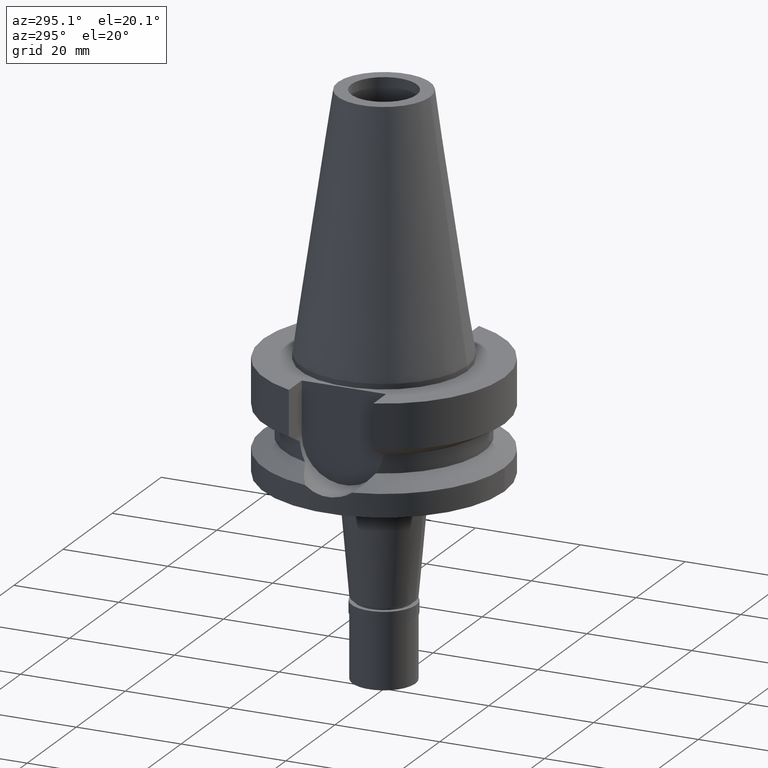
[diagram: clean part render]
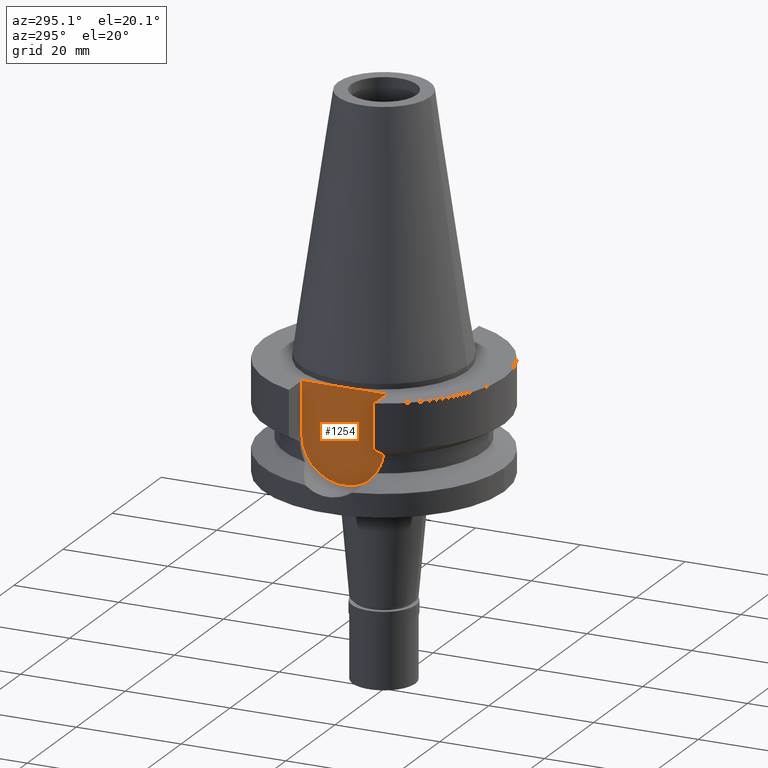
[diagram: same view with one face highlighted and labeled with its STEP entity id]
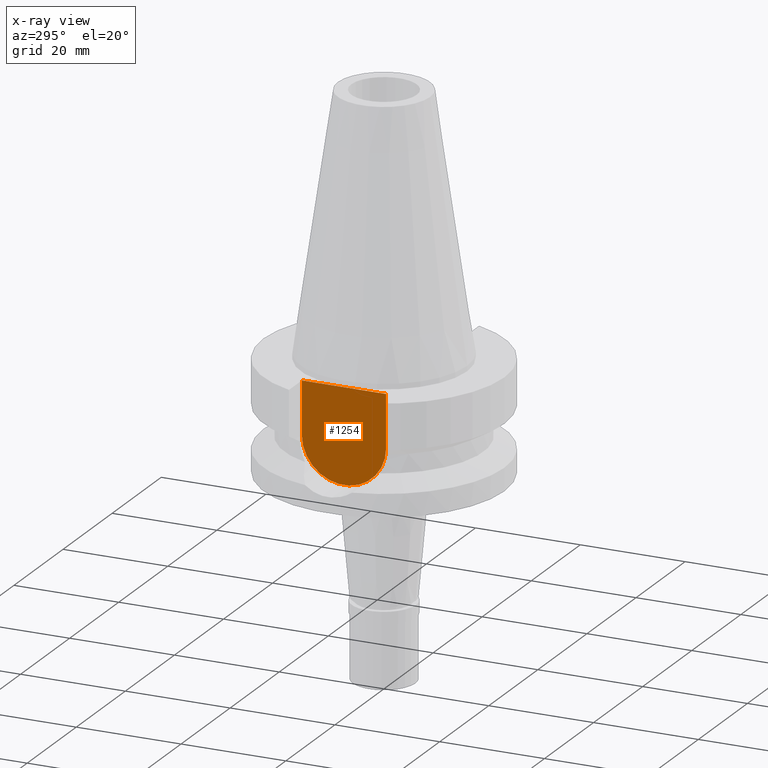
[diagram: x-ray of the same camera — body ghosted, the highlighted face saturated]
A machine part, auxiliary view. The second image highlights one B-rep face of the part: STEP entity #1254.
The next image is the same camera in x-ray: the body ghosted, the highlighted face saturated — about 0% of this face is hidden behind the body in this view.
In plain terms, the highlighted planar face has unit normal (-1, 0, 0).
Its self-contained STEP definition (entity closure, byte-faithful):
#70 = CARTESIAN_POINT ( 'NONE',  ( -16.29999999999999716, -8.050000000000000711, -1.000000000000000000 ) ) ;
#150 = ORIENTED_EDGE ( 'NONE', *, *, #849, .F. ) ;
#288 = DIRECTION ( 'NONE',  ( 0.0000000000000000000, 0.0000000000000000000, 1.000000000000000000 ) ) ;
#309 = ORIENTED_EDGE ( 'NONE', *, *, #1898, .F. ) ;
#380 = CIRCLE ( 'NONE', #2074, 8.050000000000000711 ) ;
#431 = LINE ( 'NONE', #70, #854 ) ;
#473 = VERTEX_POINT ( 'NONE', #1482 ) ;
#480 = DIRECTION ( 'NONE',  ( 0.0000000000000000000, 1.000000000000000000, 0.0000000000000000000 ) ) ;
#663 = VERTEX_POINT ( 'NONE', #2069 ) ;
#664 = CARTESIAN_POINT ( 'NONE',  ( -16.29999999999999716, -8.050000000000000711, -10.94999999999999929 ) ) ;
#742 = VERTEX_POINT ( 'NONE', #1360 ) ;
#764 = EDGE_CURVE ( 'NONE', #473, #663, #431, .T. ) ;
#849 = EDGE_CURVE ( 'NONE', #473, #2516, #2153, .T. ) ;
#854 = VECTOR ( 'NONE', #480, 1000.000000000000000 ) ;
#951 = CARTESIAN_POINT ( 'NONE',  ( -16.29999999999999716, 2.249676170033999711E-14, 0.0000000000000000000 ) ) ;
#973 = PLANE ( 'NONE',  #2458 ) ;
#1051 = DIRECTION ( 'NONE',  ( 0.0000000000000000000, 0.0000000000000000000, -1.000000000000000000 ) ) ;
#1176 = LINE ( 'NONE', #2739, #2305 ) ;
#1254 = ADVANCED_FACE ( 'NONE', ( #1442 ), #973, .T. ) ;
#1360 = CARTESIAN_POINT ( 'NONE',  ( -16.29999999999999716, 8.050000000000000711, -10.94999999999999929 ) ) ;
#1377 = ORIENTED_EDGE ( 'NONE', *, *, #764, .T. ) ;
#1389 = DIRECTION ( 'NONE',  ( -1.000000000000000000, 0.0000000000000000000, 0.0000000000000000000 ) ) ;
#1442 = FACE_OUTER_BOUND ( 'NONE', #1657, .T. ) ;
#1482 = CARTESIAN_POINT ( 'NONE',  ( -16.29999999999999716, -8.050000000000000711, -1.000000000000000000 ) ) ;
#1532 = VECTOR ( 'NONE', #1051, 1000.000000000000000 ) ;
#1657 = EDGE_LOOP ( 'NONE', ( #309, #2569, #150, #1377 ) ) ;
#1693 = CARTESIAN_POINT ( 'NONE',  ( -16.29999999999999716, -8.050000000000000711, -1.000000000000000000 ) ) ;
#1825 = CARTESIAN_POINT ( 'NONE',  ( -16.29999999999999716, 1.981478521019999946E-14, -10.94999999999999929 ) ) ;
#1833 = EDGE_CURVE ( 'NONE', #2516, #742, #380, .T. ) ;
#1898 = EDGE_CURVE ( 'NONE', #742, #663, #1176, .T. ) ;
#2069 = CARTESIAN_POINT ( 'NONE',  ( -16.29999999999999716, 8.050000000000000711, -1.000000000000000000 ) ) ;
#2074 = AXIS2_PLACEMENT_3D ( 'NONE', #1825, #2116, #2780 ) ;
#2116 = DIRECTION ( 'NONE',  ( 1.000000000000000000, 0.0000000000000000000, 0.0000000000000000000 ) ) ;
#2153 = LINE ( 'NONE', #1693, #1532 ) ;
#2305 = VECTOR ( 'NONE', #288, 1000.000000000000000 ) ;
#2458 = AXIS2_PLACEMENT_3D ( 'NONE', #951, #1389, #2816 ) ;
#2516 = VERTEX_POINT ( 'NONE', #664 ) ;
#2569 = ORIENTED_EDGE ( 'NONE', *, *, #1833, .F. ) ;
#2739 = CARTESIAN_POINT ( 'NONE',  ( -16.29999999999999716, 8.050000000000000711, -10.94999999999999929 ) ) ;
#2780 = DIRECTION ( 'NONE',  ( 0.0000000000000000000, 0.0000000000000000000, -1.000000000000000000 ) ) ;
#2816 = DIRECTION ( 'NONE',  ( 0.0000000000000000000, 0.0000000000000000000, 1.000000000000000000 ) ) ;